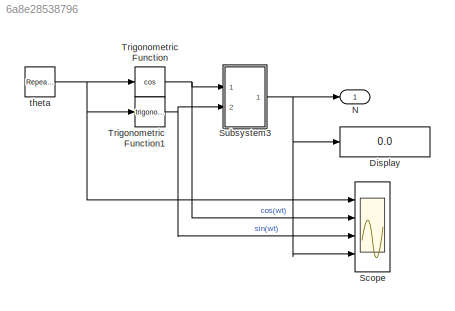
MODEL slx_6a8e28538796
KIND model
CONFIG AbsTol = auto
CONFIG EnableMultiTasking = off
CONFIG FixedStep = auto
CONFIG MaxStep = 1e-7
CONFIG MinStep = auto
CONFIG RelTol = 1e-3
CONFIG SampleTimeConstraint = Unconstrained
CONFIG Solver = VariableStepAuto
CONFIG SolverName = VariableStepAuto
CONFIG StartTime = 0.0
CONFIG StopTime = 5
BLOCK [Display] Display
  Decimation = 1
  Ports = [1]
BLOCK [Outport] N 
  IconDisplay = Port number
BLOCK [Scope] Scope
  Floating = off
  NumInputPorts = 4
  Ports = [4]
  ScopeSpecificationString = Simulink.scopes.TimeScopeBlockCfg('CurrentConfiguration', extmgr.ConfigurationSet(extmgr.Configuration('Core','General UI',true),extmgr.Configuration('Core','Source UI',true),extmgr.Configuration('Sources','WiredSimulink',true),extmgr.Configuration('Visuals','Time Domain',true,'SerializedDisplays',{struct('MinYLimReal','-0.14165','MaxYLimReal','1.27485','YLabelReal','','MinYLimMag','0.00000','MaxY...<+3483ch>
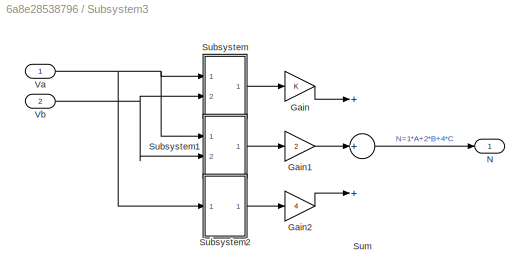
BLOCK [SubSystem] Subsystem3
  Ports = [2, 1]
  RequestExecContextInheritance = off
BLOCK [Gain] Subsystem3/Gain
  OutDataTypeStr = Inherit: Inherit via internal rule
  ParamDataTypeStr = Inherit: Inherit via internal rule
  SaturateOnIntegerOverflow = off
BLOCK [Gain] Subsystem3/Gain1
  Gain = 2
  OutDataTypeStr = Inherit: Inherit via internal rule
  ParamDataTypeStr = Inherit: Inherit via internal rule
  SaturateOnIntegerOverflow = off
BLOCK [Gain] Subsystem3/Gain2
  Gain = 4
  OutDataTypeStr = Inherit: Inherit via internal rule
  ParamDataTypeStr = Inherit: Inherit via internal rule
  SaturateOnIntegerOverflow = off
BLOCK [Outport] Subsystem3/N 
  IconDisplay = Port number
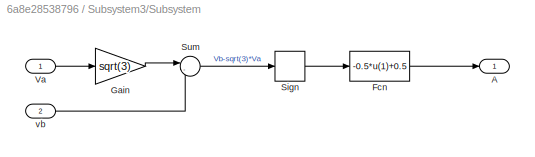
BLOCK [SubSystem] Subsystem3/Subsystem
  Ports = [2, 1]
  RequestExecContextInheritance = off
BLOCK [Outport] Subsystem3/Subsystem/A
  IconDisplay = Port number
BLOCK [Fcn] Subsystem3/Subsystem/Fcn
  Expr = -0.5*u(1)+0.5
BLOCK [Gain] Subsystem3/Subsystem/Gain
  Gain = sqrt(3)
  OutDataTypeStr = Inherit: Inherit via internal rule
  ParamDataTypeStr = Inherit: Inherit via internal rule
  SaturateOnIntegerOverflow = off
BLOCK [Signum] Subsystem3/Subsystem/Sign
BLOCK [Sum] Subsystem3/Subsystem/Sum
  IconShape = round
  InputSameDT = off
  Inputs = |-+
  OutDataTypeStr = Inherit: Inherit via internal rule
  Ports = [2, 1]
  SaturateOnIntegerOverflow = off
BLOCK [Inport] Subsystem3/Subsystem/Va
  IconDisplay = Port number
BLOCK [Inport] Subsystem3/Subsystem/vb 
  IconDisplay = Port number
  Port = 2
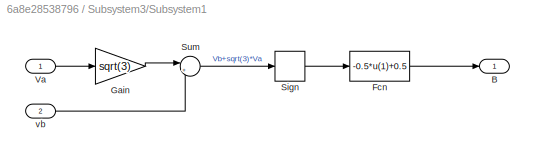
BLOCK [SubSystem] Subsystem3/Subsystem1
  Ports = [2, 1]
  RequestExecContextInheritance = off
BLOCK [Outport] Subsystem3/Subsystem1/B
  IconDisplay = Port number
BLOCK [Fcn] Subsystem3/Subsystem1/Fcn
  Expr = -0.5*u(1)+0.5
BLOCK [Gain] Subsystem3/Subsystem1/Gain
  Gain = sqrt(3)
  OutDataTypeStr = Inherit: Inherit via internal rule
  ParamDataTypeStr = Inherit: Inherit via internal rule
  SaturateOnIntegerOverflow = off
BLOCK [Signum] Subsystem3/Subsystem1/Sign
BLOCK [Sum] Subsystem3/Subsystem1/Sum
  IconShape = round
  InputSameDT = off
  Inputs = |++
  OutDataTypeStr = Inherit: Inherit via internal rule
  Ports = [2, 1]
  SaturateOnIntegerOverflow = off
BLOCK [Inport] Subsystem3/Subsystem1/Va
  IconDisplay = Port number
BLOCK [Inport] Subsystem3/Subsystem1/vb 
  IconDisplay = Port number
  Port = 2
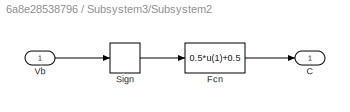
BLOCK [SubSystem] Subsystem3/Subsystem2
  Ports = [1, 1]
  RequestExecContextInheritance = off
BLOCK [Outport] Subsystem3/Subsystem2/C
  IconDisplay = Port number
BLOCK [Fcn] Subsystem3/Subsystem2/Fcn
  Expr = 0.5*u(1)+0.5
BLOCK [Signum] Subsystem3/Subsystem2/Sign
BLOCK [Inport] Subsystem3/Subsystem2/Vb 
  IconDisplay = Port number
BLOCK [Sum] Subsystem3/Sum
  InputSameDT = off
  Inputs = +++
  OutDataTypeStr = Inherit: Inherit via internal rule
  Ports = [3, 1]
  SaturateOnIntegerOverflow = off
BLOCK [Inport] Subsystem3/Va
  IconDisplay = Port number
BLOCK [Inport] Subsystem3/Vb 
  IconDisplay = Port number
  Port = 2
BLOCK [Trigonometry] Trigonometric Function
  Operator = cos
  Ports = [1, 1]
BLOCK [Trigonometry] Trigonometric Function1
  Ports = [1, 1]
BLOCK [Reference] theta  REF=simulink/Sources/Repeating
Sequence
  Ports = [0, 1]
  SourceBlock = simulink/Sources/Repeating\nSequence
  SourceProductBaseCode = SL
  SourceProductName = Simulink
  SourceType = Repeating table
LINE Subsystem3/Gain1:1 -> Subsystem3/Sum:2
LINE Subsystem3/Gain2:1 -> Subsystem3/Sum:3
LINE Subsystem3/Gain:1 -> Subsystem3/Sum:1
LINE Subsystem3/Subsystem/Fcn:1 -> Subsystem3/Subsystem/A:1
LINE Subsystem3/Subsystem/Gain:1 -> Subsystem3/Subsystem/Sum:1
LINE Subsystem3/Subsystem/Sign:1 -> Subsystem3/Subsystem/Fcn:1
LINE Subsystem3/Subsystem/Sum:1 -> Subsystem3/Subsystem/Sign:1
LINE Subsystem3/Subsystem/Va:1 -> Subsystem3/Subsystem/Gain:1
LINE Subsystem3/Subsystem/vb :1 -> Subsystem3/Subsystem/Sum:2
LINE Subsystem3/Subsystem1/Fcn:1 -> Subsystem3/Subsystem1/B:1
LINE Subsystem3/Subsystem1/Gain:1 -> Subsystem3/Subsystem1/Sum:1
LINE Subsystem3/Subsystem1/Sign:1 -> Subsystem3/Subsystem1/Fcn:1
LINE Subsystem3/Subsystem1/Sum:1 -> Subsystem3/Subsystem1/Sign:1
LINE Subsystem3/Subsystem1/Va:1 -> Subsystem3/Subsystem1/Gain:1
LINE Subsystem3/Subsystem1/vb :1 -> Subsystem3/Subsystem1/Sum:2
LINE Subsystem3/Subsystem1:1 -> Subsystem3/Gain1:1
LINE Subsystem3/Subsystem2/Fcn:1 -> Subsystem3/Subsystem2/C:1
LINE Subsystem3/Subsystem2/Sign:1 -> Subsystem3/Subsystem2/Fcn:1
LINE Subsystem3/Subsystem2/Vb :1 -> Subsystem3/Subsystem2/Sign:1
LINE Subsystem3/Subsystem2:1 -> Subsystem3/Gain2:1
LINE Subsystem3/Subsystem:1 -> Subsystem3/Gain:1
LINE Subsystem3/Sum:1 -> Subsystem3/N :1
NET Subsystem3/Va:1 -> Subsystem3/Subsystem1:1, Subsystem3/Subsystem2:1, Subsystem3/Subsystem:1
NET Subsystem3/Vb :1 -> Subsystem3/Subsystem1:2, Subsystem3/Subsystem:2
NET Subsystem3:1 -> Display:1, N :1, Scope:4
NET Trigonometric Function1:1 -> Scope:3, Subsystem3:2
NET Trigonometric Function:1 -> Scope:2, Subsystem3:1
NET theta:1 -> Scope:1, Trigonometric Function1:1, Trigonometric Function:1
note: NET lines group one-source signal fan-out (src -> all destinations, sorted); 1:1 wires keep LINE
